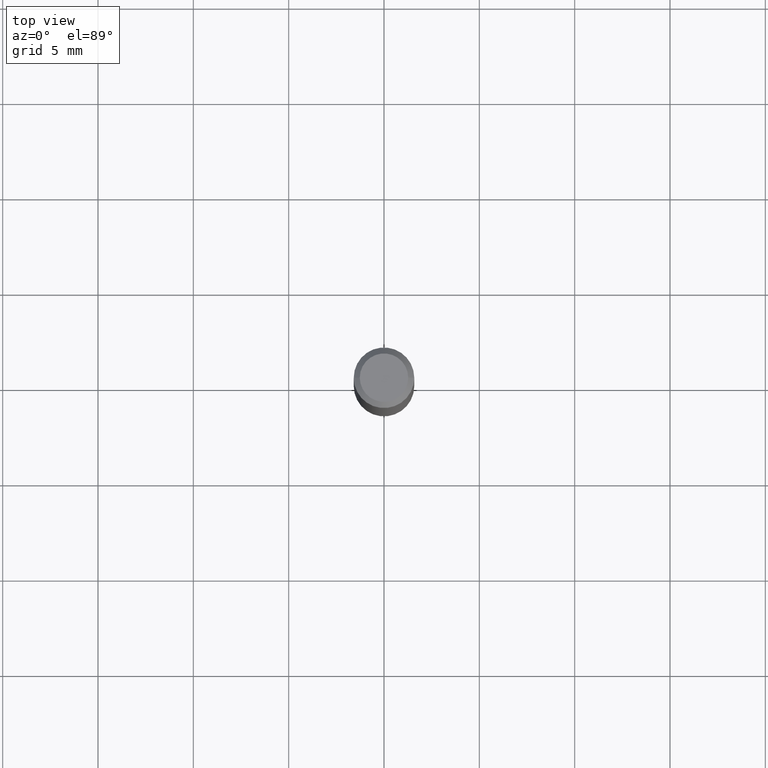
[diagram: clean part render]
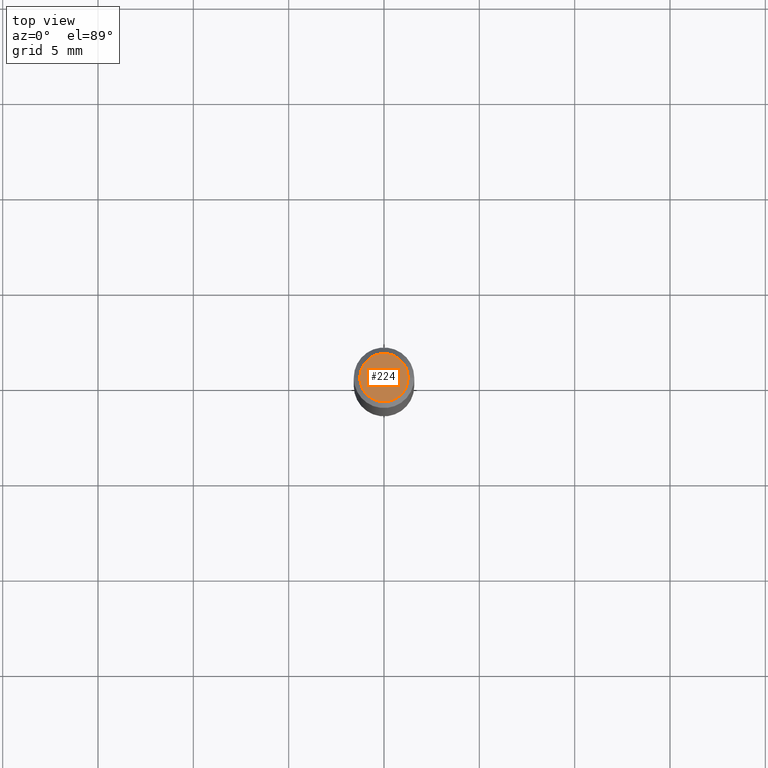
[diagram: same view with one face highlighted and labeled with its STEP entity id]
A machine part, top view. The second image highlights one B-rep face of the part: STEP entity #224.
In plain terms, the highlighted planar face has unit normal (0, -0, -1).
Its self-contained STEP definition (entity closure, byte-faithful):
#17 = CIRCLE ( 'NONE', #307, 0.04999999999999999584 ) ;
#19 = EDGE_LOOP ( 'NONE', ( #146, #338 ) ) ;
#27 = CARTESIAN_POINT ( 'NONE',  ( 3.893286209682126177E-47, -5.558580879666067980E-33, -1.592040838891559689E-18 ) ) ;
#42 = CIRCLE ( 'NONE', #417, 0.04999999999999999584 ) ;
#62 = VERTEX_POINT ( 'NONE', #157 ) ;
#70 = CARTESIAN_POINT ( 'NONE',  ( -0.04999999999999999584, 3.709698922520826725E-16, -1.592040838894077649E-18 ) ) ;
#129 = CARTESIAN_POINT ( 'NONE',  ( 3.893286209682126177E-47, -5.558580879666067980E-33, -1.592040838891559689E-18 ) ) ;
#131 = EDGE_CURVE ( 'NONE', #62, #213, #17, .T. ) ;
#138 = DIRECTION ( 'NONE',  ( 1.000000000000000000, -6.982962677686265922E-15, 4.875957971899673662E-29 ) ) ;
#146 = ORIENTED_EDGE ( 'NONE', *, *, #453, .T. ) ;
#157 = CARTESIAN_POINT ( 'NONE',  ( 0.04999999999999999584, -4.077247707424184212E-16, -1.592040838888913461E-18 ) ) ;
#213 = VERTEX_POINT ( 'NONE', #70 ) ;
#224 = ADVANCED_FACE ( 'NONE', ( #227 ), #274, .F. ) ;
#227 = FACE_OUTER_BOUND ( 'NONE', #19, .T. ) ;
#260 = DIRECTION ( 'NONE',  ( 2.438088387897960049E-29, -3.491481338843145188E-15, -1.000000000000000000 ) ) ;
#271 = DIRECTION ( 'NONE',  ( -2.445468806185136597E-29, 3.491481338843145583E-15, 1.000000000000000000 ) ) ;
#274 = PLANE ( 'NONE',  #341 ) ;
#286 = DIRECTION ( 'NONE',  ( -2.445468806185136597E-29, 3.491481338843145583E-15, 1.000000000000000000 ) ) ;
#307 = AXIS2_PLACEMENT_3D ( 'NONE', #27, #271, #138 ) ;
#338 = ORIENTED_EDGE ( 'NONE', *, *, #131, .T. ) ;
#341 = AXIS2_PLACEMENT_3D ( 'NONE', #420, #260, #425 ) ;
#392 = DIRECTION ( 'NONE',  ( 1.000000000000000000, -6.982962677686265922E-15, 4.875957971899673662E-29 ) ) ;
#417 = AXIS2_PLACEMENT_3D ( 'NONE', #129, #286, #392 ) ;
#420 = CARTESIAN_POINT ( 'NONE',  ( 1.946643104841063088E-47, -2.779290439833033990E-33, -7.960204194457798443E-19 ) ) ;
#425 = DIRECTION ( 'NONE',  ( -1.000000000000000000, 6.982962677686265922E-15, -4.876176775795935793E-29 ) ) ;
#453 = EDGE_CURVE ( 'NONE', #213, #62, #42, .T. ) ;